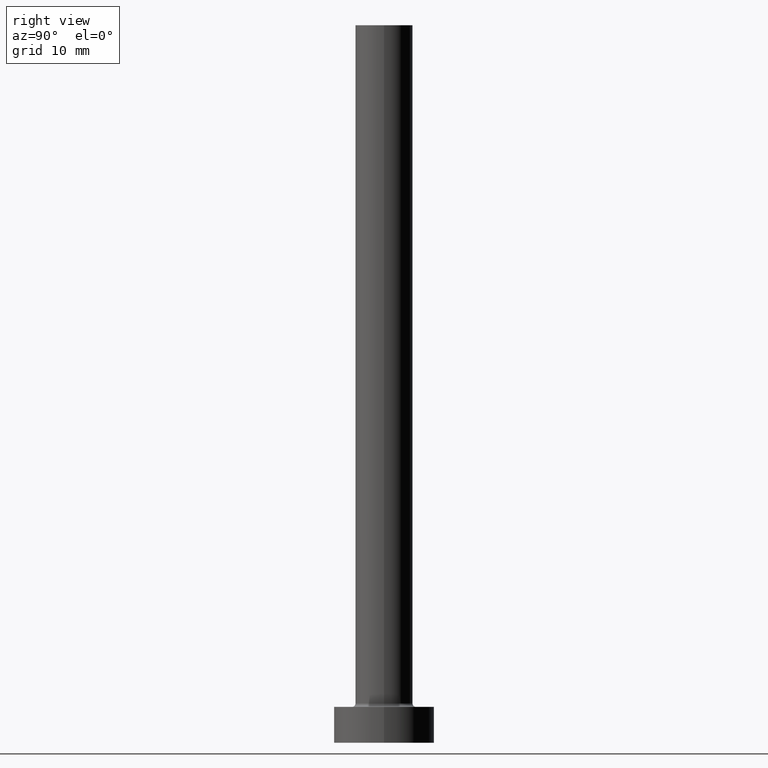
[diagram: clean part render]
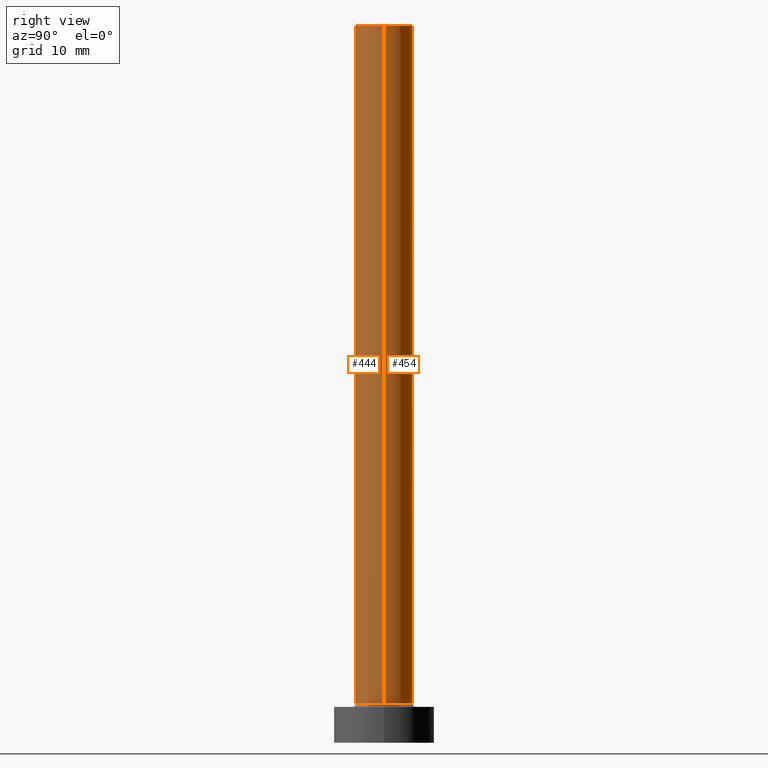
[diagram: same view with one multi-face feature highlighted, each face labeled with its STEP entity id]
A machine part, right view. The highlighted faces form ONE feature: a constant-radius fillet chain: 2 tangent blend faces with common blend radius 4 mm. The faces share edges in the B-rep.
Their STEP definitions:
[1] entity #454 (Cylinder):
#5 = LINE ( 'NONE', #232, #358 ) ;
#14 = DIRECTION ( 'NONE',  ( -0.000000000000000000, -0.000000000000000000, -1.000000000000000000 ) ) ;
#16 = AXIS2_PLACEMENT_3D ( 'NONE', #419, #109, #72 ) ;
#34 = CARTESIAN_POINT ( 'NONE',  ( 0.000000000000000000, 0.000000000000000000, 5.500000000000005329 ) ) ;
#40 = EDGE_LOOP ( 'NONE', ( #319, #312, #446, #459 ) ) ;
#41 = EDGE_CURVE ( 'NONE', #228, #180, #123, .T. ) ;
#42 = DIRECTION ( 'NONE',  ( 0.000000000000000000, 0.000000000000000000, 1.000000000000000000 ) ) ;
#43 = CARTESIAN_POINT ( 'NONE',  ( -4.000000000000000000, 0.000000000000000000, 5.500000000000005329 ) ) ;
#72 = DIRECTION ( 'NONE',  ( 1.000000000000000000, 0.000000000000000000, 0.000000000000000000 ) ) ;
#75 = VECTOR ( 'NONE', #14, 1000.000000000000000 ) ;
#90 = CARTESIAN_POINT ( 'NONE',  ( 4.000000000000000000, 4.898587196589412829E-16, 100.0000000000000000 ) ) ;
#109 = DIRECTION ( 'NONE',  ( 0.000000000000000000, 0.000000000000000000, 1.000000000000000000 ) ) ;
#116 = DIRECTION ( 'NONE',  ( 1.000000000000000000, 0.000000000000000000, 0.000000000000000000 ) ) ;
#122 = DIRECTION ( 'NONE',  ( -0.000000000000000000, -0.000000000000000000, -1.000000000000000000 ) ) ;
#123 = CIRCLE ( 'NONE', #16, 4.000000000000000000 ) ;
#125 = CARTESIAN_POINT ( 'NONE',  ( 4.000000000000000000, 4.898587196589412829E-16, 5.500000000000005329 ) ) ;
#147 = VERTEX_POINT ( 'NONE', #43 ) ;
#150 = CARTESIAN_POINT ( 'NONE',  ( 0.000000000000000000, 0.000000000000000000, 100.0000000000000000 ) ) ;
#155 = VERTEX_POINT ( 'NONE', #125 ) ;
#172 = CIRCLE ( 'NONE', #417, 4.000000000000000000 ) ;
#174 = LINE ( 'NONE', #90, #75 ) ;
#180 = VERTEX_POINT ( 'NONE', #329 ) ;
#184 = DIRECTION ( 'NONE',  ( -0.000000000000000000, -0.000000000000000000, -1.000000000000000000 ) ) ;
#224 = EDGE_CURVE ( 'NONE', #228, #155, #174, .T. ) ;
#228 = VERTEX_POINT ( 'NONE', #441 ) ;
#232 = CARTESIAN_POINT ( 'NONE',  ( -4.000000000000000000, 0.000000000000000000, 100.0000000000000000 ) ) ;
#312 = ORIENTED_EDGE ( 'NONE', *, *, #224, .T. ) ;
#319 = ORIENTED_EDGE ( 'NONE', *, *, #41, .F. ) ;
#324 = DIRECTION ( 'NONE',  ( -1.000000000000000000, 0.000000000000000000, 0.000000000000000000 ) ) ;
#329 = CARTESIAN_POINT ( 'NONE',  ( -4.000000000000000000, 0.000000000000000000, 100.0000000000000000 ) ) ;
#344 = CYLINDRICAL_SURFACE ( 'NONE', #448, 4.000000000000000000 ) ;
#358 = VECTOR ( 'NONE', #122, 1000.000000000000000 ) ;
#365 = EDGE_CURVE ( 'NONE', #180, #147, #5, .T. ) ;
#388 = EDGE_CURVE ( 'NONE', #155, #147, #172, .T. ) ;
#417 = AXIS2_PLACEMENT_3D ( 'NONE', #34, #42, #116 ) ;
#419 = CARTESIAN_POINT ( 'NONE',  ( 0.000000000000000000, 0.000000000000000000, 100.0000000000000000 ) ) ;
#441 = CARTESIAN_POINT ( 'NONE',  ( 4.000000000000000000, 4.898587196589412829E-16, 100.0000000000000000 ) ) ;
#446 = ORIENTED_EDGE ( 'NONE', *, *, #388, .T. ) ;
#448 = AXIS2_PLACEMENT_3D ( 'NONE', #150, #184, #324 ) ;
#454 = ADVANCED_FACE ( 'NONE', ( #457 ), #344, .T. ) ;
#457 = FACE_OUTER_BOUND ( 'NONE', #40, .T. ) ;
#459 = ORIENTED_EDGE ( 'NONE', *, *, #365, .F. ) ;
[2] entity #444 (Cylinder):
#4 = DIRECTION ( 'NONE',  ( 1.000000000000000000, 0.000000000000000000, 0.000000000000000000 ) ) ;
#5 = LINE ( 'NONE', #232, #358 ) ;
#14 = DIRECTION ( 'NONE',  ( -0.000000000000000000, -0.000000000000000000, -1.000000000000000000 ) ) ;
#31 = DIRECTION ( 'NONE',  ( -0.000000000000000000, -0.000000000000000000, -1.000000000000000000 ) ) ;
#43 = CARTESIAN_POINT ( 'NONE',  ( -4.000000000000000000, 0.000000000000000000, 5.500000000000005329 ) ) ;
#58 = EDGE_CURVE ( 'NONE', #147, #155, #98, .T. ) ;
#68 = DIRECTION ( 'NONE',  ( -1.000000000000000000, 0.000000000000000000, 0.000000000000000000 ) ) ;
#75 = VECTOR ( 'NONE', #14, 1000.000000000000000 ) ;
#77 = AXIS2_PLACEMENT_3D ( 'NONE', #211, #31, #68 ) ;
#90 = CARTESIAN_POINT ( 'NONE',  ( 4.000000000000000000, 4.898587196589412829E-16, 100.0000000000000000 ) ) ;
#98 = CIRCLE ( 'NONE', #337, 4.000000000000000000 ) ;
#106 = EDGE_CURVE ( 'NONE', #180, #228, #261, .T. ) ;
#107 = FACE_OUTER_BOUND ( 'NONE', #437, .T. ) ;
#122 = DIRECTION ( 'NONE',  ( -0.000000000000000000, -0.000000000000000000, -1.000000000000000000 ) ) ;
#125 = CARTESIAN_POINT ( 'NONE',  ( 4.000000000000000000, 4.898587196589412829E-16, 5.500000000000005329 ) ) ;
#147 = VERTEX_POINT ( 'NONE', #43 ) ;
#155 = VERTEX_POINT ( 'NONE', #125 ) ;
#156 = DIRECTION ( 'NONE',  ( 0.000000000000000000, 0.000000000000000000, 1.000000000000000000 ) ) ;
#174 = LINE ( 'NONE', #90, #75 ) ;
#180 = VERTEX_POINT ( 'NONE', #329 ) ;
#211 = CARTESIAN_POINT ( 'NONE',  ( 0.000000000000000000, 0.000000000000000000, 100.0000000000000000 ) ) ;
#223 = DIRECTION ( 'NONE',  ( 1.000000000000000000, 0.000000000000000000, 0.000000000000000000 ) ) ;
#224 = EDGE_CURVE ( 'NONE', #228, #155, #174, .T. ) ;
#228 = VERTEX_POINT ( 'NONE', #441 ) ;
#229 = CARTESIAN_POINT ( 'NONE',  ( 0.000000000000000000, 0.000000000000000000, 100.0000000000000000 ) ) ;
#232 = CARTESIAN_POINT ( 'NONE',  ( -4.000000000000000000, 0.000000000000000000, 100.0000000000000000 ) ) ;
#234 = ORIENTED_EDGE ( 'NONE', *, *, #224, .F. ) ;
#255 = CYLINDRICAL_SURFACE ( 'NONE', #77, 4.000000000000000000 ) ;
#256 = CARTESIAN_POINT ( 'NONE',  ( 0.000000000000000000, 0.000000000000000000, 5.500000000000005329 ) ) ;
#261 = CIRCLE ( 'NONE', #266, 4.000000000000000000 ) ;
#266 = AXIS2_PLACEMENT_3D ( 'NONE', #229, #156, #223 ) ;
#280 = ORIENTED_EDGE ( 'NONE', *, *, #58, .T. ) ;
#329 = CARTESIAN_POINT ( 'NONE',  ( -4.000000000000000000, 0.000000000000000000, 100.0000000000000000 ) ) ;
#337 = AXIS2_PLACEMENT_3D ( 'NONE', #256, #347, #4 ) ;
#347 = DIRECTION ( 'NONE',  ( 0.000000000000000000, 0.000000000000000000, 1.000000000000000000 ) ) ;
#358 = VECTOR ( 'NONE', #122, 1000.000000000000000 ) ;
#364 = ORIENTED_EDGE ( 'NONE', *, *, #106, .F. ) ;
#365 = EDGE_CURVE ( 'NONE', #180, #147, #5, .T. ) ;
#402 = ORIENTED_EDGE ( 'NONE', *, *, #365, .T. ) ;
#437 = EDGE_LOOP ( 'NONE', ( #234, #364, #402, #280 ) ) ;
#441 = CARTESIAN_POINT ( 'NONE',  ( 4.000000000000000000, 4.898587196589412829E-16, 100.0000000000000000 ) ) ;
#444 = ADVANCED_FACE ( 'NONE', ( #107 ), #255, .T. ) ;